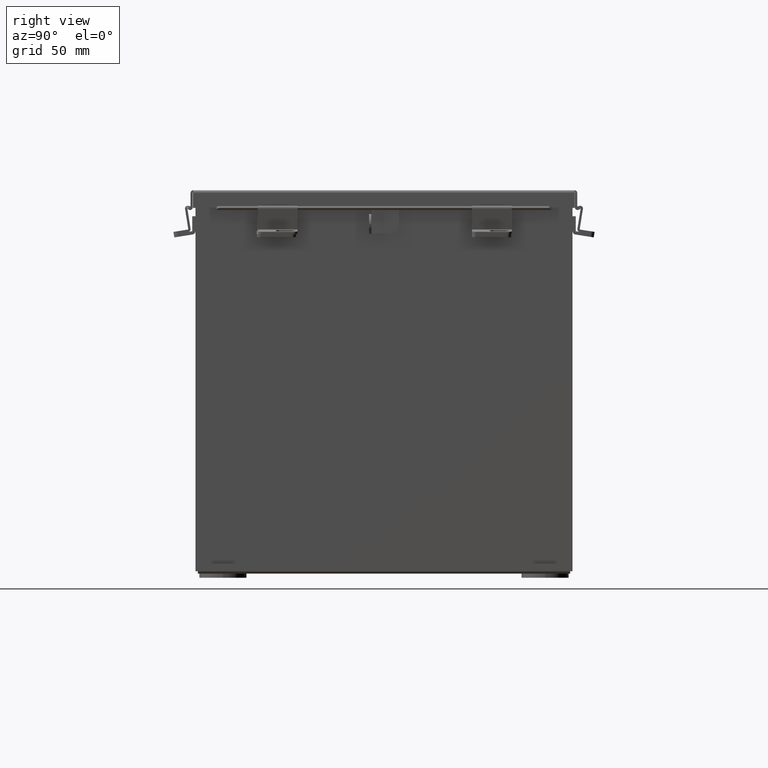
[diagram: clean part render]
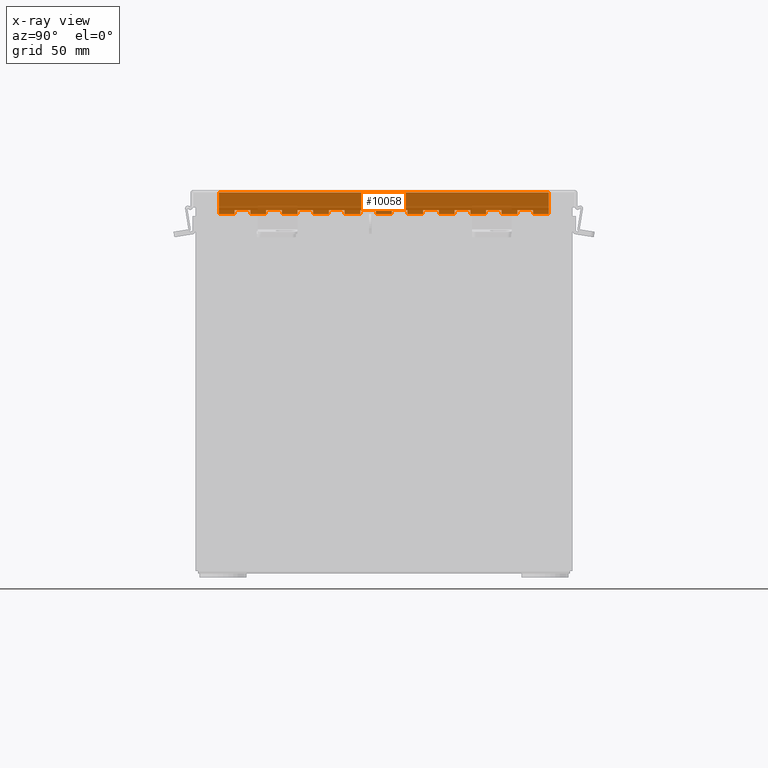
[diagram: x-ray — body ghosted, one internal face saturated and labeled with its STEP entity id]
A machine part, right view, then the same camera in x-ray: the body is ghosted and one INTERNAL B-rep face — a face not visible from any outside direction — is saturated and labeled: STEP entity #10058.
In plain terms, the highlighted planar face has unit normal (1, -0, 0).
Its self-contained STEP definition (entity closure, byte-faithful):
#31 = DIRECTION ( 'NONE',  ( -7.457200744667377200E-029, -9.751201745385773400E-030, 1.000000000000000000 ) ) ;
#58 = EDGE_CURVE ( 'NONE', #7378, #7720, #1668, .T. ) ;
#61 = DIRECTION ( 'NONE',  ( -7.457200744667377200E-029, -9.751201745385773400E-030, 1.000000000000000000 ) ) ;
#74 = VERTEX_POINT ( 'NONE', #8312 ) ;
#91 = CARTESIAN_POINT ( 'NONE',  ( -0.6880000000000228200, 0.06250000000000076300, -10.50000000000000000 ) ) ;
#145 = EDGE_CURVE ( 'NONE', #74, #1330, #13692, .T. ) ;
#171 = VECTOR ( 'NONE', #683, 39.37007874015748100 ) ;
#192 = EDGE_CURVE ( 'NONE', #2069, #2962, #1236, .T. ) ;
#228 = CARTESIAN_POINT ( 'NONE',  ( -0.5630000000000016100, 0.06249999999999967400, -7.500000000000000000 ) ) ;
#241 = CARTESIAN_POINT ( 'NONE',  ( -0.8130000000000002800, 0.06249999999999967400, -5.999999999999999100 ) ) ;
#287 = DIRECTION ( 'NONE',  ( 1.000000000000000000, 1.365923996831863100E-016, -7.452270364009696600E-029 ) ) ;
#376 = VERTEX_POINT ( 'NONE', #15360 ) ;
#377 = CARTESIAN_POINT ( 'NONE',  ( -0.5629999999999993900, 0.06249999999999967400, -1.499999999999991600 ) ) ;
#400 = LINE ( 'NONE', #5681, #653 ) ;
#419 = CARTESIAN_POINT ( 'NONE',  ( -2.404026234424551500E-014, 0.06249999999999967400, -10.50000000000000000 ) ) ;
#420 = VERTEX_POINT ( 'NONE', #10264 ) ;
#476 = EDGE_CURVE ( 'NONE', #12521, #7730, #8336, .T. ) ;
#653 = VECTOR ( 'NONE', #8437, 39.37007874015748100 ) ;
#668 = CARTESIAN_POINT ( 'NONE',  ( -0.5630000000000016100, 0.06249999999999967400, -5.999999999999999100 ) ) ;
#672 = ORIENTED_EDGE ( 'NONE', *, *, #8586, .T. ) ;
#683 = DIRECTION ( 'NONE',  ( -1.000000000000000000, -1.224646799147083000E-016, 7.452270364009696600E-029 ) ) ;
#698 = CARTESIAN_POINT ( 'NONE',  ( -0.5630000000000016100, 0.06249999999999967400, -6.500000000000000900 ) ) ;
#736 = VECTOR ( 'NONE', #6597, 39.37007874015748100 ) ;
#738 = EDGE_CURVE ( 'NONE', #2069, #12105, #2167, .T. ) ;
#794 = LINE ( 'NONE', #1307, #11148 ) ;
#909 = VERTEX_POINT ( 'NONE', #10602 ) ;
#938 = VECTOR ( 'NONE', #11854, 39.37007874015748100 ) ;
#955 = ORIENTED_EDGE ( 'NONE', *, *, #15558, .F. ) ;
#1039 = CARTESIAN_POINT ( 'NONE',  ( -0.5630000000000234800, 0.06249999999999967400, -10.00000000000000000 ) ) ;
#1053 = DIRECTION ( 'NONE',  ( -1.365923996831395000E-016, 9.740889095723117900E-030, -1.000000000000000000 ) ) ;
#1086 = CARTESIAN_POINT ( 'NONE',  ( -0.8130000000000002800, 0.06249999999999967400, -3.499999999999999100 ) ) ;
#1096 = CARTESIAN_POINT ( 'NONE',  ( -0.6880000000000009400, 0.06250000000000076300, -5.000000000000000000 ) ) ;
#1111 = DIRECTION ( 'NONE',  ( 1.000000000000000000, 1.365923996831863100E-016, -7.452270364009696600E-029 ) ) ;
#1135 = EDGE_CURVE ( 'NONE', #2339, #7730, #12148, .T. ) ;
#1162 = VECTOR ( 'NONE', #2811, 39.37007874015748100 ) ;
#1164 = EDGE_CURVE ( 'NONE', #12990, #420, #3006, .T. ) ;
#1227 = ORIENTED_EDGE ( 'NONE', *, *, #9501, .T. ) ;
#1236 = LINE ( 'NONE', #13063, #3826 ) ;
#1288 = CARTESIAN_POINT ( 'NONE',  ( -0.8130000000000002800, 0.06249999999998874500, -1.499999999999991600 ) ) ;
#1298 = EDGE_CURVE ( 'NONE', #7535, #10326, #8112, .T. ) ;
#1307 = CARTESIAN_POINT ( 'NONE',  ( -0.8130000000000002800, 0.06249999999999967400, -8.500000000000000000 ) ) ;
#1330 = VERTEX_POINT ( 'NONE', #4621 ) ;
#1378 = CARTESIAN_POINT ( 'NONE',  ( -0.5629999999999993900, 0.06249999999999967400, -1.499999999999991600 ) ) ;
#1444 = VECTOR ( 'NONE', #2634, 39.37007874015748100 ) ;
#1488 = ORIENTED_EDGE ( 'NONE', *, *, #1164, .F. ) ;
#1529 = CARTESIAN_POINT ( 'NONE',  ( -0.6880000000000031600, 0.06250000000001169900, -9.499999999999998200 ) ) ;
#1550 = DIRECTION ( 'NONE',  ( -1.000000000000000000, -1.365923996831863100E-016, 7.452270364009696600E-029 ) ) ;
#1668 = LINE ( 'NONE', #698, #9512 ) ;
#1777 = CARTESIAN_POINT ( 'NONE',  ( -0.6880000000000009400, 0.06250000000001169900, -4.000000000000000900 ) ) ;
#1820 = LINE ( 'NONE', #12258, #1444 ) ;
#1857 = CARTESIAN_POINT ( 'NONE',  ( -0.5630000000000234800, 0.06249999999999967400, -10.50000000000000000 ) ) ;
#1893 = CARTESIAN_POINT ( 'NONE',  ( -0.6880000000000031600, 0.06250000000001169900, -9.000000000000001800 ) ) ;
#1894 = EDGE_CURVE ( 'NONE', #74, #14788, #794, .T. ) ;
#1953 = CARTESIAN_POINT ( 'NONE',  ( -0.5630000000000016100, 0.06249999999999967400, -5.499999999999997300 ) ) ;
#1982 = CARTESIAN_POINT ( 'NONE',  ( -0.5630000000000016100, 0.06249999999999967400, -4.499999999999998200 ) ) ;
#2002 = LINE ( 'NONE', #3793, #14471 ) ;
#2013 = LINE ( 'NONE', #14248, #13454 ) ;
#2054 = EDGE_CURVE ( 'NONE', #3621, #9063, #5667, .T. ) ;
#2062 = ORIENTED_EDGE ( 'NONE', *, *, #6417, .F. ) ;
#2069 = VERTEX_POINT ( 'NONE', #9620 ) ;
#2074 = ORIENTED_EDGE ( 'NONE', *, *, #3660, .F. ) ;
#2081 = VECTOR ( 'NONE', #61, 39.37007874015748100 ) ;
#2082 = VERTEX_POINT ( 'NONE', #1893 ) ;
#2083 = DIRECTION ( 'NONE',  ( 1.000000000000000000, 1.365923996831863100E-016, -7.452270364009696600E-029 ) ) ;
#2167 = LINE ( 'NONE', #6239, #11884 ) ;
#2173 = CARTESIAN_POINT ( 'NONE',  ( -0.5629999999999993900, 0.06250000000000076300, -2.999999999999992500 ) ) ;
#2213 = VECTOR ( 'NONE', #7017, 39.37007874015748100 ) ;
#2243 = VERTEX_POINT ( 'NONE', #2173 ) ;
#2264 = VERTEX_POINT ( 'NONE', #1857 ) ;
#2272 = DIRECTION ( 'NONE',  ( -7.457200744667377200E-029, -9.751201745385773400E-030, 1.000000000000000000 ) ) ;
#2339 = VERTEX_POINT ( 'NONE', #1039 ) ;
#2399 = LINE ( 'NONE', #12832, #3516 ) ;
#2438 = VECTOR ( 'NONE', #2272, 39.37007874015748100 ) ;
#2455 = DIRECTION ( 'NONE',  ( 1.000000000000000000, 1.365923996831863100E-016, -7.452270364009696600E-029 ) ) ;
#2515 = CARTESIAN_POINT ( 'NONE',  ( -0.6880000000000009400, 0.06249999999999967400, -1.999999999999989100 ) ) ;
#2634 = DIRECTION ( 'NONE',  ( -1.000000000000000000, -1.365923996831863100E-016, 7.452270364009696600E-029 ) ) ;
#2639 = ORIENTED_EDGE ( 'NONE', *, *, #7189, .F. ) ;
#2663 = CARTESIAN_POINT ( 'NONE',  ( -0.8130000000000243700, 0.06249999999999967400, -10.00000000000000000 ) ) ;
#2709 = EDGE_CURVE ( 'NONE', #376, #2339, #9931, .T. ) ;
#2710 = DIRECTION ( 'NONE',  ( -1.000000000000000000, -1.365923996831863100E-016, 7.452270364009696600E-029 ) ) ;
#2771 = ORIENTED_EDGE ( 'NONE', *, *, #15344, .F. ) ;
#2811 = DIRECTION ( 'NONE',  ( -1.365923996831395000E-016, 9.740889095723117900E-030, -1.000000000000000000 ) ) ;
#2852 = CARTESIAN_POINT ( 'NONE',  ( -0.8130000000000002800, 0.06249999999999967400, -9.000000000000001800 ) ) ;
#2864 = EDGE_CURVE ( 'NONE', #13658, #3781, #8236, .T. ) ;
#2891 = LINE ( 'NONE', #6784, #6451 ) ;
#2932 = DIRECTION ( 'NONE',  ( -1.000000000000000000, -1.365923996831863100E-016, 7.452270364009696600E-029 ) ) ;
#2962 = VERTEX_POINT ( 'NONE', #1953 ) ;
#2966 = CARTESIAN_POINT ( 'NONE',  ( -0.6880000000000228200, 0.06250000000000076300, -10.50000000000000000 ) ) ;
#3006 = LINE ( 'NONE', #13165, #8241 ) ;
#3067 = CARTESIAN_POINT ( 'NONE',  ( -0.5629999999999993900, 0.06250000000000076300, -3.499999999999989800 ) ) ;
#3082 = ORIENTED_EDGE ( 'NONE', *, *, #5483, .F. ) ;
#3207 = VERTEX_POINT ( 'NONE', #4388 ) ;
#3292 = CARTESIAN_POINT ( 'NONE',  ( -0.5629999999999993900, 0.06249999999999967400, -0.9999999999999899000 ) ) ;
#3376 = LINE ( 'NONE', #10364, #171 ) ;
#3466 = EDGE_CURVE ( 'NONE', #6742, #9476, #7797, .T. ) ;
#3471 = DIRECTION ( 'NONE',  ( -1.000000000000000000, -1.365923996831863100E-016, 7.452270364009696600E-029 ) ) ;
#3516 = VECTOR ( 'NONE', #2932, 39.37007874015748100 ) ;
#3525 = DIRECTION ( 'NONE',  ( -7.457200744667377200E-029, -9.751201745385773400E-030, 1.000000000000000000 ) ) ;
#3526 = VERTEX_POINT ( 'NONE', #8846 ) ;
#3559 = ORIENTED_EDGE ( 'NONE', *, *, #2709, .F. ) ;
#3583 = ORIENTED_EDGE ( 'NONE', *, *, #7397, .F. ) ;
#3621 = VERTEX_POINT ( 'NONE', #6667 ) ;
#3642 = CARTESIAN_POINT ( 'NONE',  ( -0.5630000000000016100, 0.06249999999999967400, -6.500000000000000900 ) ) ;
#3660 = EDGE_CURVE ( 'NONE', #14788, #6733, #400, .T. ) ;
#3682 = CARTESIAN_POINT ( 'NONE',  ( -0.6880000000000009400, 0.06249999999999967400, -7.500000000000000000 ) ) ;
#3685 = ORIENTED_EDGE ( 'NONE', *, *, #14037, .F. ) ;
#3741 = DIRECTION ( 'NONE',  ( -7.457200744667377200E-029, -9.751201745385773400E-030, 1.000000000000000000 ) ) ;
#3781 = VERTEX_POINT ( 'NONE', #11800 ) ;
#3793 = CARTESIAN_POINT ( 'NONE',  ( -0.8130000000000002800, 0.06249999999999967400, -5.000000000000000000 ) ) ;
#3826 = VECTOR ( 'NONE', #1111, 39.37007874015748100 ) ;
#3843 = CARTESIAN_POINT ( 'NONE',  ( -0.8130000000000002800, 0.06249999999999967400, -4.000000000000000900 ) ) ;
#3987 = EDGE_CURVE ( 'NONE', #2243, #7533, #10886, .T. ) ;
#4023 = CARTESIAN_POINT ( 'NONE',  ( -0.5629999999999993900, 0.06250000000000076300, -3.499999999999989800 ) ) ;
#4100 = ORIENTED_EDGE ( 'NONE', *, *, #14751, .F. ) ;
#4164 = LINE ( 'NONE', #419, #12507 ) ;
#4204 = VECTOR ( 'NONE', #3525, 39.37007874015748100 ) ;
#4343 = LINE ( 'NONE', #9092, #9815 ) ;
#4388 = CARTESIAN_POINT ( 'NONE',  ( -0.5629999999999993900, 0.06249999999999967400, -3.999999999999991600 ) ) ;
#4425 = CARTESIAN_POINT ( 'NONE',  ( -0.5629999999999993900, 0.06249999999999967400, -0.4999999999999925100 ) ) ;
#4427 = VECTOR ( 'NONE', #1053, 39.37007874015748100 ) ;
#4621 = CARTESIAN_POINT ( 'NONE',  ( -0.6880000000000009400, 0.06250000000001169900, -8.000000000000001800 ) ) ;
#4623 = VECTOR ( 'NONE', #15631, 39.37007874015748100 ) ;
#4688 = DIRECTION ( 'NONE',  ( -1.365923996831395000E-016, 9.740889095723117900E-030, -1.000000000000000000 ) ) ;
#4690 = AXIS2_PLACEMENT_3D ( 'NONE', #13901, #14870, #9124 ) ;
#4808 = ORIENTED_EDGE ( 'NONE', *, *, #9557, .T. ) ;
#4830 = LINE ( 'NONE', #10171, #736 ) ;
#5001 = VECTOR ( 'NONE', #12637, 39.37007874015748100 ) ;
#5038 = ORIENTED_EDGE ( 'NONE', *, *, #1298, .T. ) ;
#5081 = VERTEX_POINT ( 'NONE', #4425 ) ;
#5235 = DIRECTION ( 'NONE',  ( -1.000000000000000000, -1.224646799147083000E-016, 7.452270364009696600E-029 ) ) ;
#5256 = LINE ( 'NONE', #1288, #10929 ) ;
#5415 = CARTESIAN_POINT ( 'NONE',  ( -0.6880000000000228200, 0.06250000000000076300, -10.50000000000000000 ) ) ;
#5483 = EDGE_CURVE ( 'NONE', #9476, #13635, #2399, .T. ) ;
#5594 = EDGE_CURVE ( 'NONE', #2962, #8106, #7686, .T. ) ;
#5667 = LINE ( 'NONE', #13768, #14664 ) ;
#5681 = CARTESIAN_POINT ( 'NONE',  ( -0.5630000000000016100, 0.06250000000000076300, -8.500000000000000000 ) ) ;
#5690 = EDGE_CURVE ( 'NONE', #420, #10326, #5856, .T. ) ;
#5711 = DIRECTION ( 'NONE',  ( -1.000000000000000000, -1.365923996831863100E-016, 7.452270364009696600E-029 ) ) ;
#5835 = CARTESIAN_POINT ( 'NONE',  ( -0.5630000000000234800, 0.06249999999999967400, -9.499999999999998200 ) ) ;
#5856 = LINE ( 'NONE', #7668, #7922 ) ;
#6031 = CARTESIAN_POINT ( 'NONE',  ( -0.6880000000000009400, 0.06250000000001169900, -3.499999999999999100 ) ) ;
#6114 = CARTESIAN_POINT ( 'NONE',  ( -0.8130000000000002800, 0.06249999999999967400, -0.4999999999999925100 ) ) ;
#6151 = CARTESIAN_POINT ( 'NONE',  ( -0.8130000000000002800, 0.06249999999999967400, -4.499999999999998200 ) ) ;
#6154 = CARTESIAN_POINT ( 'NONE',  ( -0.8130000000000002800, 0.06249999999998874500, -6.999999999999998200 ) ) ;
#6239 = CARTESIAN_POINT ( 'NONE',  ( -0.6880000000000228200, 0.06250000000000076300, -10.50000000000000000 ) ) ;
#6363 = CARTESIAN_POINT ( 'NONE',  ( -0.6880000000000228200, 0.06250000000000076300, -10.50000000000000000 ) ) ;
#6417 = EDGE_CURVE ( 'NONE', #6469, #9063, #4830, .T. ) ;
#6451 = VECTOR ( 'NONE', #6679, 39.37007874015748100 ) ;
#6469 = VERTEX_POINT ( 'NONE', #3292 ) ;
#6473 = ORIENTED_EDGE ( 'NONE', *, *, #58, .F. ) ;
#6513 = EDGE_CURVE ( 'NONE', #12391, #10904, #10178, .T. ) ;
#6548 = VECTOR ( 'NONE', #2710, 39.37007874015748100 ) ;
#6597 = DIRECTION ( 'NONE',  ( -1.000000000000000000, -1.365923996831863100E-016, 7.452270364009696600E-029 ) ) ;
#6654 = DIRECTION ( 'NONE',  ( -7.457200744667377200E-029, -9.751201745385773400E-030, 1.000000000000000000 ) ) ;
#6662 = DIRECTION ( 'NONE',  ( -1.365923996831395000E-016, 9.740889095723117900E-030, -1.000000000000000000 ) ) ;
#6667 = CARTESIAN_POINT ( 'NONE',  ( -0.6880000000000009400, 0.06249999999999967400, -1.499999999999991600 ) ) ;
#6679 = DIRECTION ( 'NONE',  ( 1.000000000000000000, 1.365923996831863100E-016, -7.452270364009696600E-029 ) ) ;
#6712 = LINE ( 'NONE', #241, #6548 ) ;
#6733 = VERTEX_POINT ( 'NONE', #12397 ) ;
#6742 = VERTEX_POINT ( 'NONE', #1378 ) ;
#6750 = ORIENTED_EDGE ( 'NONE', *, *, #7278, .F. ) ;
#6784 = CARTESIAN_POINT ( 'NONE',  ( -0.8130000000000002800, 0.06249999999998874500, -2.499999999999990700 ) ) ;
#6822 = VECTOR ( 'NONE', #2083, 39.37007874015748100 ) ;
#6860 = ORIENTED_EDGE ( 'NONE', *, *, #9500, .F. ) ;
#6875 = ORIENTED_EDGE ( 'NONE', *, *, #9080, .F. ) ;
#6923 = CARTESIAN_POINT ( 'NONE',  ( -0.5629999999999993900, 0.06249999999998874500, -2.499999999999990700 ) ) ;
#6991 = DIRECTION ( 'NONE',  ( -1.000000000000000000, -1.365923996831863100E-016, 7.452270364009696600E-029 ) ) ;
#7017 = DIRECTION ( 'NONE',  ( -1.000000000000000000, -1.365923996831863100E-016, 7.452270364009696600E-029 ) ) ;
#7147 = DIRECTION ( 'NONE',  ( -7.457200744667377200E-029, -9.751201745385773400E-030, 1.000000000000000000 ) ) ;
#7189 = EDGE_CURVE ( 'NONE', #3526, #12566, #2891, .T. ) ;
#7191 = FACE_OUTER_BOUND ( 'NONE', #11957, .T. ) ;
#7278 = EDGE_CURVE ( 'NONE', #11701, #8517, #4343, .T. ) ;
#7310 = LINE ( 'NONE', #9916, #938 ) ;
#7346 = ORIENTED_EDGE ( 'NONE', *, *, #15442, .F. ) ;
#7378 = VERTEX_POINT ( 'NONE', #3642 ) ;
#7397 = EDGE_CURVE ( 'NONE', #13658, #7378, #9444, .T. ) ;
#7533 = VERTEX_POINT ( 'NONE', #14853 ) ;
#7535 = VERTEX_POINT ( 'NONE', #15569 ) ;
#7536 = ORIENTED_EDGE ( 'NONE', *, *, #1894, .F. ) ;
#7539 = CARTESIAN_POINT ( 'NONE',  ( -0.5630000000000016100, 0.06250000000000076300, -8.500000000000000000 ) ) ;
#7568 = VERTEX_POINT ( 'NONE', #12608 ) ;
#7626 = ORIENTED_EDGE ( 'NONE', *, *, #3466, .F. ) ;
#7642 = CARTESIAN_POINT ( 'NONE',  ( -0.5629999999999993900, 0.06249999999999967400, -0.4999999999999925100 ) ) ;
#7662 = CARTESIAN_POINT ( 'NONE',  ( -0.6880000000000009400, 0.06250000000000076300, 0.0000000000000000000 ) ) ;
#7668 = CARTESIAN_POINT ( 'NONE',  ( 0.0000000000000000000, 0.06249999999999967400, 0.0000000000000000000 ) ) ;
#7686 = LINE ( 'NONE', #10861, #7849 ) ;
#7720 = VERTEX_POINT ( 'NONE', #9056 ) ;
#7730 = VERTEX_POINT ( 'NONE', #15271 ) ;
#7797 = LINE ( 'NONE', #377, #1162 ) ;
#7849 = VECTOR ( 'NONE', #6662, 39.37007874015748100 ) ;
#7857 = VERTEX_POINT ( 'NONE', #12236 ) ;
#7892 = VERTEX_POINT ( 'NONE', #6031 ) ;
#7922 = VECTOR ( 'NONE', #10866, 39.37007874015748100 ) ;
#8106 = VERTEX_POINT ( 'NONE', #668 ) ;
#8108 = CARTESIAN_POINT ( 'NONE',  ( -2.404026234424551500E-014, 0.06249999999999967400, -10.50000000000000000 ) ) ;
#8112 = LINE ( 'NONE', #13690, #13323 ) ;
#8192 = LINE ( 'NONE', #12134, #5001 ) ;
#8236 = LINE ( 'NONE', #8432, #2081 ) ;
#8241 = VECTOR ( 'NONE', #6654, 39.37007874015748100 ) ;
#8252 = ORIENTED_EDGE ( 'NONE', *, *, #2054, .T. ) ;
#8312 = CARTESIAN_POINT ( 'NONE',  ( -0.6880000000000009400, 0.06250000000001169900, -8.500000000000000000 ) ) ;
#8336 = LINE ( 'NONE', #91, #4204 ) ;
#8432 = CARTESIAN_POINT ( 'NONE',  ( -0.6880000000000228200, 0.06250000000000076300, -10.50000000000000000 ) ) ;
#8437 = DIRECTION ( 'NONE',  ( -1.365923996831395000E-016, 9.740889095723117900E-030, -1.000000000000000000 ) ) ;
#8469 = DIRECTION ( 'NONE',  ( -7.457200744667377200E-029, -9.751201745385773400E-030, 1.000000000000000000 ) ) ;
#8517 = VERTEX_POINT ( 'NONE', #10206 ) ;
#8531 = ORIENTED_EDGE ( 'NONE', *, *, #12450, .T. ) ;
#8586 = EDGE_CURVE ( 'NONE', #3526, #13635, #2013, .T. ) ;
#8660 = CARTESIAN_POINT ( 'NONE',  ( -0.6880000000000228200, 0.06250000000000076300, -10.50000000000000000 ) ) ;
#8793 = DIRECTION ( 'NONE',  ( -7.457200744667377200E-029, -9.751201745385773400E-030, 1.000000000000000000 ) ) ;
#8841 = ORIENTED_EDGE ( 'NONE', *, *, #6513, .T. ) ;
#8846 = CARTESIAN_POINT ( 'NONE',  ( -0.6880000000000009400, 0.06249999999999967400, -2.499999999999990700 ) ) ;
#9056 = CARTESIAN_POINT ( 'NONE',  ( -0.5630000000000016100, 0.06249999999999967400, -6.999999999999998200 ) ) ;
#9063 = VERTEX_POINT ( 'NONE', #11965 ) ;
#9080 = EDGE_CURVE ( 'NONE', #6733, #2082, #14615, .T. ) ;
#9092 = CARTESIAN_POINT ( 'NONE',  ( -0.5630000000000016100, 0.06249999999999967400, -7.500000000000000000 ) ) ;
#9124 = DIRECTION ( 'NONE',  ( -1.000000000000000000, -1.224646799147083000E-016, 7.452270364009696600E-029 ) ) ;
#9208 = CARTESIAN_POINT ( 'NONE',  ( -0.5629999999999993900, 0.06249999999998874500, -2.499999999999990700 ) ) ;
#9251 = ORIENTED_EDGE ( 'NONE', *, *, #145, .T. ) ;
#9419 = VECTOR ( 'NONE', #10374, 39.37007874015748100 ) ;
#9444 = LINE ( 'NONE', #14548, #6822 ) ;
#9466 = EDGE_CURVE ( 'NONE', #7535, #5081, #9829, .T. ) ;
#9476 = VERTEX_POINT ( 'NONE', #13200 ) ;
#9492 = LINE ( 'NONE', #3067, #15622 ) ;
#9500 = EDGE_CURVE ( 'NONE', #13754, #376, #14669, .T. ) ;
#9501 = EDGE_CURVE ( 'NONE', #2264, #12521, #4164, .T. ) ;
#9512 = VECTOR ( 'NONE', #10687, 39.37007874015748100 ) ;
#9557 = EDGE_CURVE ( 'NONE', #7892, #7533, #11221, .T. ) ;
#9620 = CARTESIAN_POINT ( 'NONE',  ( -0.6880000000000009400, 0.06250000000000076300, -5.499999999999997300 ) ) ;
#9734 = CARTESIAN_POINT ( 'NONE',  ( -0.8130000000000002800, 0.06249999999999967400, -3.000000000000001800 ) ) ;
#9815 = VECTOR ( 'NONE', #11431, 39.37007874015748100 ) ;
#9829 = LINE ( 'NONE', #6114, #4623 ) ;
#9852 = ORIENTED_EDGE ( 'NONE', *, *, #10445, .F. ) ;
#9916 = CARTESIAN_POINT ( 'NONE',  ( -0.6880000000000228200, 0.06250000000000076300, -10.50000000000000000 ) ) ;
#9931 = LINE ( 'NONE', #5835, #4427 ) ;
#10058 = ADVANCED_FACE ( 'NONE', ( #7191 ), #10830, .T. ) ;
#10141 = ORIENTED_EDGE ( 'NONE', *, *, #15348, .F. ) ;
#10171 = CARTESIAN_POINT ( 'NONE',  ( -0.8130000000000002800, 0.06249999999999967400, -0.9999999999999899000 ) ) ;
#10178 = LINE ( 'NONE', #5415, #10950 ) ;
#10206 = CARTESIAN_POINT ( 'NONE',  ( -0.5630000000000016100, 0.06250000000000076300, -8.000000000000001800 ) ) ;
#10264 = CARTESIAN_POINT ( 'NONE',  ( 0.0000000000000000000, 0.06249999999999967400, 0.0000000000000000000 ) ) ;
#10284 = CARTESIAN_POINT ( 'NONE',  ( -0.6880000000000009400, 0.06250000000001169900, -4.499999999999998200 ) ) ;
#10326 = VERTEX_POINT ( 'NONE', #7662 ) ;
#10364 = CARTESIAN_POINT ( 'NONE',  ( -2.404026234424551500E-014, 0.06249999999999967400, -10.50000000000000000 ) ) ;
#10374 = DIRECTION ( 'NONE',  ( -1.365923996831395000E-016, 9.740889095723117900E-030, -1.000000000000000000 ) ) ;
#10393 = ORIENTED_EDGE ( 'NONE', *, *, #13001, .T. ) ;
#10445 = EDGE_CURVE ( 'NONE', #7720, #909, #15189, .T. ) ;
#10451 = DIRECTION ( 'NONE',  ( 1.000000000000000000, 1.365923996831863100E-016, -7.452270364009696600E-029 ) ) ;
#10492 = LINE ( 'NONE', #1086, #13345 ) ;
#10498 = VECTOR ( 'NONE', #12759, 39.37007874015748100 ) ;
#10602 = CARTESIAN_POINT ( 'NONE',  ( -0.6880000000000009400, 0.06249999999999967400, -6.999999999999998200 ) ) ;
#10661 = VECTOR ( 'NONE', #14648, 39.37007874015748100 ) ;
#10674 = VERTEX_POINT ( 'NONE', #4023 ) ;
#10687 = DIRECTION ( 'NONE',  ( -1.365923996831395000E-016, 9.740889095723117900E-030, -1.000000000000000000 ) ) ;
#10699 = DIRECTION ( 'NONE',  ( -1.365923996831395000E-016, 9.740889095723117900E-030, -1.000000000000000000 ) ) ;
#10830 = PLANE ( 'NONE',  #4690 ) ;
#10860 = ORIENTED_EDGE ( 'NONE', *, *, #738, .T. ) ;
#10861 = CARTESIAN_POINT ( 'NONE',  ( -0.5630000000000016100, 0.06249999999999967400, -5.499999999999997300 ) ) ;
#10866 = DIRECTION ( 'NONE',  ( -1.000000000000000000, -1.224646799147083000E-016, 7.452270364009696600E-029 ) ) ;
#10886 = LINE ( 'NONE', #9734, #11162 ) ;
#10904 = VERTEX_POINT ( 'NONE', #1777 ) ;
#10917 = EDGE_CURVE ( 'NONE', #7568, #7857, #12687, .T. ) ;
#10929 = VECTOR ( 'NONE', #287, 39.37007874015748100 ) ;
#10950 = VECTOR ( 'NONE', #12075, 39.37007874015748100 ) ;
#11148 = VECTOR ( 'NONE', #15595, 39.37007874015748100 ) ;
#11162 = VECTOR ( 'NONE', #3471, 39.37007874015748100 ) ;
#11221 = LINE ( 'NONE', #14616, #13134 ) ;
#11332 = ORIENTED_EDGE ( 'NONE', *, *, #12850, .T. ) ;
#11431 = DIRECTION ( 'NONE',  ( -1.365923996831395000E-016, 9.740889095723117900E-030, -1.000000000000000000 ) ) ;
#11485 = VERTEX_POINT ( 'NONE', #3682 ) ;
#11565 = DIRECTION ( 'NONE',  ( -7.457200744667377200E-029, -9.751201745385773400E-030, 1.000000000000000000 ) ) ;
#11588 = VECTOR ( 'NONE', #1550, 39.37007874015748100 ) ;
#11701 = VERTEX_POINT ( 'NONE', #228 ) ;
#11800 = CARTESIAN_POINT ( 'NONE',  ( -0.6880000000000009400, 0.06249999999999967400, -5.999999999999999100 ) ) ;
#11841 = VECTOR ( 'NONE', #10451, 39.37007874015748100 ) ;
#11854 = DIRECTION ( 'NONE',  ( -7.457200744667377200E-029, -9.751201745385773400E-030, 1.000000000000000000 ) ) ;
#11859 = ORIENTED_EDGE ( 'NONE', *, *, #3987, .F. ) ;
#11884 = VECTOR ( 'NONE', #8793, 39.37007874015748100 ) ;
#11939 = VECTOR ( 'NONE', #5711, 39.37007874015748100 ) ;
#11957 = EDGE_LOOP ( 'NONE', ( #13472, #3559, #6860, #8531, #6875, #2074, #7536, #9251, #2771, #6750, #13125, #11332, #9852, #6473, #3583, #13600, #12934, #15017, #12611, #10860, #955, #14258, #4100, #8841, #14748, #7346, #15286, #4808, #11859, #10141, #2639, #672, #3082, #7626, #13480, #8252, #2062, #3685, #12647, #5038, #13430, #1488, #10393, #1227, #13910 ) ) ;
#11965 = CARTESIAN_POINT ( 'NONE',  ( -0.6880000000000009400, 0.06249999999999967400, -0.9999999999999899000 ) ) ;
#12062 = LINE ( 'NONE', #2966, #2438 ) ;
#12075 = DIRECTION ( 'NONE',  ( -7.457200744667377200E-029, -9.751201745385773400E-030, 1.000000000000000000 ) ) ;
#12105 = VERTEX_POINT ( 'NONE', #1096 ) ;
#12134 = CARTESIAN_POINT ( 'NONE',  ( -0.8130000000000002800, 0.06249999999998874500, -7.500000000000000000 ) ) ;
#12148 = LINE ( 'NONE', #2663, #11588 ) ;
#12236 = CARTESIAN_POINT ( 'NONE',  ( -0.5630000000000016100, 0.06249999999999967400, -5.000000000000000000 ) ) ;
#12258 = CARTESIAN_POINT ( 'NONE',  ( -0.8130000000000002800, 0.06250000000000076300, -8.000000000000001800 ) ) ;
#12367 = EDGE_CURVE ( 'NONE', #3621, #6742, #5256, .T. ) ;
#12391 = VERTEX_POINT ( 'NONE', #10284 ) ;
#12397 = CARTESIAN_POINT ( 'NONE',  ( -0.5630000000000016100, 0.06250000000000076300, -9.000000000000001800 ) ) ;
#12450 = EDGE_CURVE ( 'NONE', #13754, #2082, #7310, .T. ) ;
#12507 = VECTOR ( 'NONE', #5235, 39.37007874015748100 ) ;
#12521 = VERTEX_POINT ( 'NONE', #8660 ) ;
#12566 = VERTEX_POINT ( 'NONE', #9208 ) ;
#12594 = LINE ( 'NONE', #7642, #14309 ) ;
#12608 = CARTESIAN_POINT ( 'NONE',  ( -0.5630000000000016100, 0.06249999999999967400, -4.499999999999998200 ) ) ;
#12611 = ORIENTED_EDGE ( 'NONE', *, *, #192, .F. ) ;
#12637 = DIRECTION ( 'NONE',  ( 1.000000000000000000, 1.365923996831863100E-016, -7.452270364009696600E-029 ) ) ;
#12647 = ORIENTED_EDGE ( 'NONE', *, *, #9466, .F. ) ;
#12687 = LINE ( 'NONE', #1982, #9419 ) ;
#12759 = DIRECTION ( 'NONE',  ( -1.000000000000000000, -1.365923996831863100E-016, 7.452270364009696600E-029 ) ) ;
#12832 = CARTESIAN_POINT ( 'NONE',  ( -0.8130000000000002800, 0.06249999999998874500, -1.999999999999989100 ) ) ;
#12850 = EDGE_CURVE ( 'NONE', #11485, #909, #12062, .T. ) ;
#12934 = ORIENTED_EDGE ( 'NONE', *, *, #14148, .F. ) ;
#12935 = VECTOR ( 'NONE', #14064, 39.37007874015748100 ) ;
#12970 = LINE ( 'NONE', #6151, #11841 ) ;
#12990 = VERTEX_POINT ( 'NONE', #8108 ) ;
#13001 = EDGE_CURVE ( 'NONE', #12990, #2264, #3376, .T. ) ;
#13063 = CARTESIAN_POINT ( 'NONE',  ( -0.8130000000000002800, 0.06249999999999967400, -5.499999999999997300 ) ) ;
#13125 = ORIENTED_EDGE ( 'NONE', *, *, #15323, .F. ) ;
#13134 = VECTOR ( 'NONE', #31, 39.37007874015748100 ) ;
#13165 = CARTESIAN_POINT ( 'NONE',  ( -2.404026234424551500E-014, 0.06249999999999967400, -10.50000000000000000 ) ) ;
#13200 = CARTESIAN_POINT ( 'NONE',  ( -0.5629999999999993900, 0.06249999999999967400, -1.999999999999989100 ) ) ;
#13323 = VECTOR ( 'NONE', #7147, 39.37007874015748100 ) ;
#13345 = VECTOR ( 'NONE', #2455, 39.37007874015748100 ) ;
#13388 = CARTESIAN_POINT ( 'NONE',  ( -0.8130000000000002800, 0.06249999999999967400, -9.499999999999998200 ) ) ;
#13430 = ORIENTED_EDGE ( 'NONE', *, *, #5690, .F. ) ;
#13454 = VECTOR ( 'NONE', #11565, 39.37007874015748100 ) ;
#13472 = ORIENTED_EDGE ( 'NONE', *, *, #1135, .F. ) ;
#13480 = ORIENTED_EDGE ( 'NONE', *, *, #12367, .F. ) ;
#13600 = ORIENTED_EDGE ( 'NONE', *, *, #2864, .T. ) ;
#13635 = VERTEX_POINT ( 'NONE', #2515 ) ;
#13658 = VERTEX_POINT ( 'NONE', #15417 ) ;
#13690 = CARTESIAN_POINT ( 'NONE',  ( -0.6880000000000228200, 0.06250000000000076300, -10.50000000000000000 ) ) ;
#13692 = LINE ( 'NONE', #6363, #14447 ) ;
#13754 = VERTEX_POINT ( 'NONE', #1529 ) ;
#13755 = LINE ( 'NONE', #3843, #10498 ) ;
#13768 = CARTESIAN_POINT ( 'NONE',  ( -0.6880000000000228200, 0.06250000000000076300, -10.50000000000000000 ) ) ;
#13901 = CARTESIAN_POINT ( 'NONE',  ( -2.404026234424551500E-014, 0.06249999999999967400, -10.50000000000000000 ) ) ;
#13910 = ORIENTED_EDGE ( 'NONE', *, *, #476, .T. ) ;
#13920 = EDGE_CURVE ( 'NONE', #7892, #10674, #10492, .T. ) ;
#14037 = EDGE_CURVE ( 'NONE', #5081, #6469, #12594, .T. ) ;
#14064 = DIRECTION ( 'NONE',  ( 1.000000000000000000, 1.365923996831863100E-016, -7.452270364009696600E-029 ) ) ;
#14148 = EDGE_CURVE ( 'NONE', #8106, #3781, #6712, .T. ) ;
#14248 = CARTESIAN_POINT ( 'NONE',  ( -0.6880000000000228200, 0.06250000000000076300, -10.50000000000000000 ) ) ;
#14258 = ORIENTED_EDGE ( 'NONE', *, *, #10917, .F. ) ;
#14309 = VECTOR ( 'NONE', #4688, 39.37007874015748100 ) ;
#14447 = VECTOR ( 'NONE', #3741, 39.37007874015748100 ) ;
#14471 = VECTOR ( 'NONE', #6991, 39.37007874015748100 ) ;
#14548 = CARTESIAN_POINT ( 'NONE',  ( -0.8130000000000002800, 0.06249999999999967400, -6.500000000000000900 ) ) ;
#14615 = LINE ( 'NONE', #2852, #2213 ) ;
#14616 = CARTESIAN_POINT ( 'NONE',  ( -0.6880000000000228200, 0.06250000000000076300, -10.50000000000000000 ) ) ;
#14625 = EDGE_CURVE ( 'NONE', #3207, #10904, #13755, .T. ) ;
#14648 = DIRECTION ( 'NONE',  ( -1.365923996831395000E-016, 9.740889095723117900E-030, -1.000000000000000000 ) ) ;
#14664 = VECTOR ( 'NONE', #8469, 39.37007874015748100 ) ;
#14669 = LINE ( 'NONE', #13388, #12935 ) ;
#14748 = ORIENTED_EDGE ( 'NONE', *, *, #14625, .F. ) ;
#14751 = EDGE_CURVE ( 'NONE', #12391, #7568, #12970, .T. ) ;
#14788 = VERTEX_POINT ( 'NONE', #7539 ) ;
#14853 = CARTESIAN_POINT ( 'NONE',  ( -0.6880000000000009400, 0.06250000000001169900, -3.000000000000001800 ) ) ;
#14870 = DIRECTION ( 'NONE',  ( -1.224646799147083000E-016, 1.000000000000000000, -9.545264354926657200E-030 ) ) ;
#15017 = ORIENTED_EDGE ( 'NONE', *, *, #5594, .F. ) ;
#15075 = LINE ( 'NONE', #6923, #10661 ) ;
#15189 = LINE ( 'NONE', #6154, #11939 ) ;
#15271 = CARTESIAN_POINT ( 'NONE',  ( -0.6880000000000228200, 0.06250000000000076300, -10.00000000000000000 ) ) ;
#15286 = ORIENTED_EDGE ( 'NONE', *, *, #13920, .F. ) ;
#15323 = EDGE_CURVE ( 'NONE', #11485, #11701, #8192, .T. ) ;
#15344 = EDGE_CURVE ( 'NONE', #8517, #1330, #1820, .T. ) ;
#15348 = EDGE_CURVE ( 'NONE', #12566, #2243, #15075, .T. ) ;
#15360 = CARTESIAN_POINT ( 'NONE',  ( -0.5630000000000234800, 0.06249999999999967400, -9.499999999999998200 ) ) ;
#15417 = CARTESIAN_POINT ( 'NONE',  ( -0.6880000000000009400, 0.06249999999999967400, -6.500000000000000900 ) ) ;
#15442 = EDGE_CURVE ( 'NONE', #10674, #3207, #9492, .T. ) ;
#15558 = EDGE_CURVE ( 'NONE', #7857, #12105, #2002, .T. ) ;
#15569 = CARTESIAN_POINT ( 'NONE',  ( -0.6880000000000009400, 0.06249999999999967400, -0.4999999999999925100 ) ) ;
#15595 = DIRECTION ( 'NONE',  ( 1.000000000000000000, 1.365923996831863100E-016, -7.452270364009696600E-029 ) ) ;
#15622 = VECTOR ( 'NONE', #10699, 39.37007874015748100 ) ;
#15631 = DIRECTION ( 'NONE',  ( 1.000000000000000000, 1.365923996831863100E-016, -7.452270364009696600E-029 ) ) ;